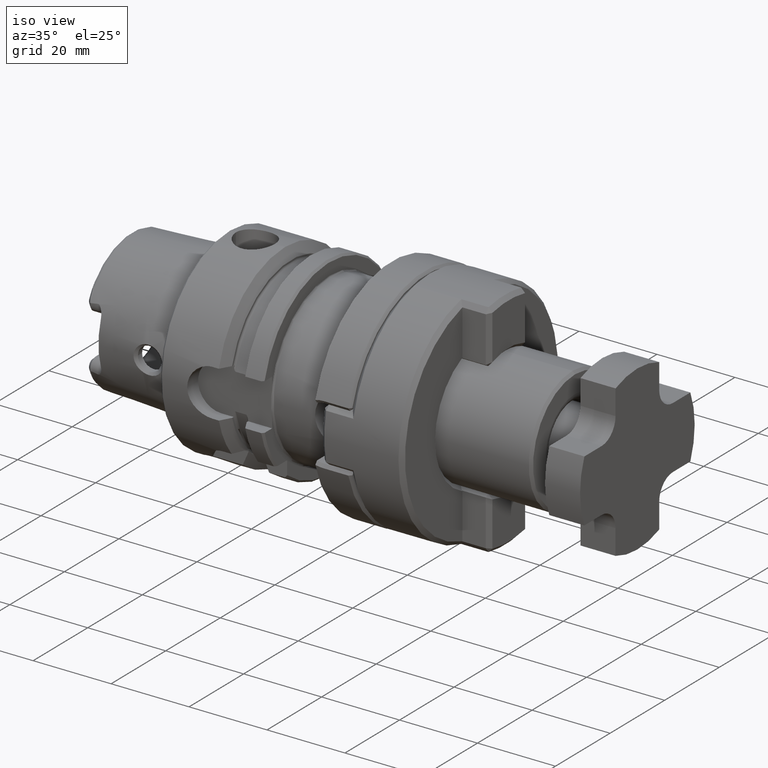
[diagram: clean part render]
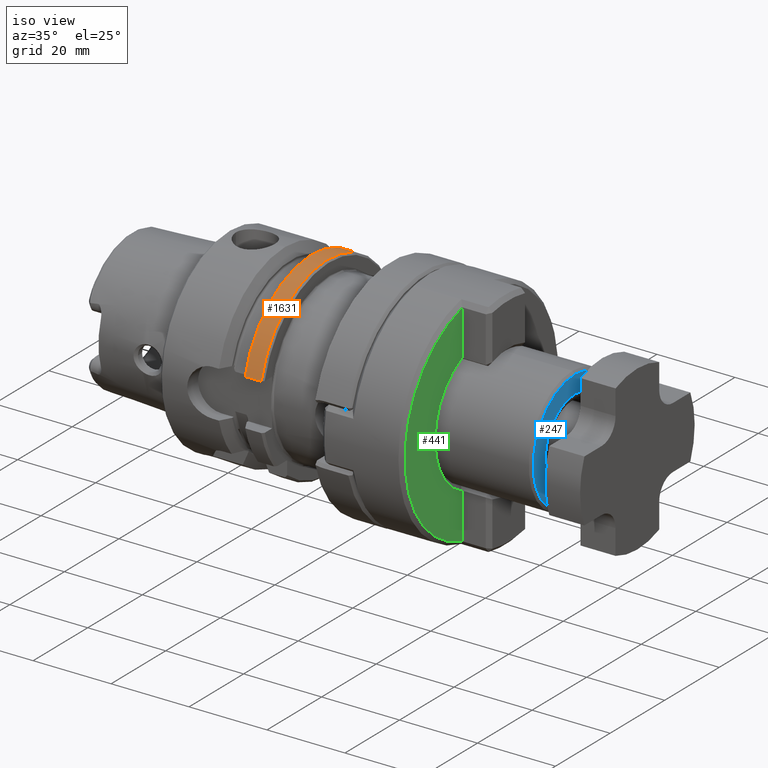
[diagram: same view with three faces highlighted in distinct colors, each labeled with its STEP entity id]
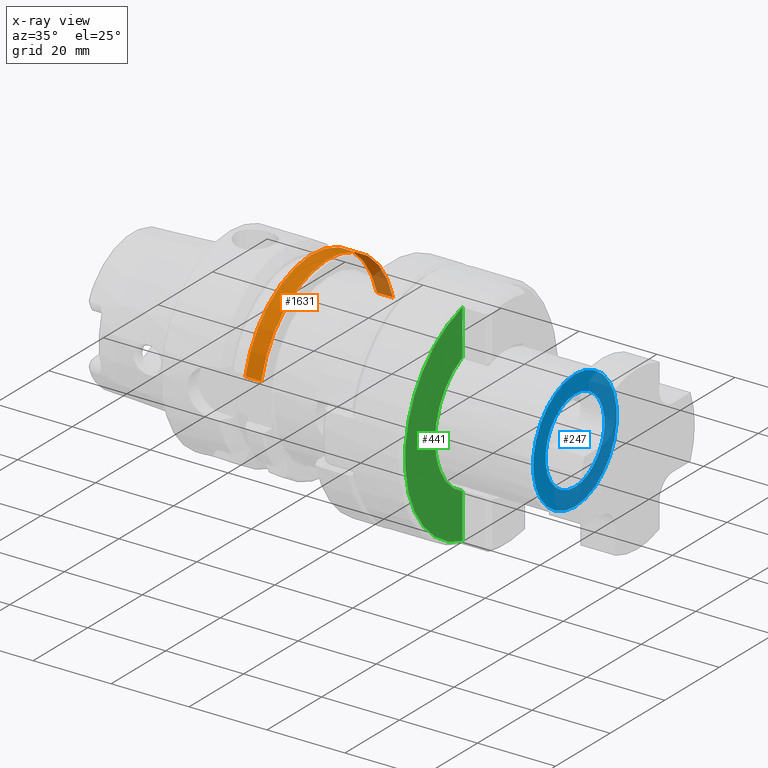
[diagram: x-ray of the same camera — body ghosted, the three highlighted faces saturated]
A machine part, iso view with three faces highlighted in distinct colors.
The next image is the same camera in x-ray (body ghosted, the three faces saturated) — at least one of them is partly hidden behind the body in this view.
Their STEP definitions:

[orange] entity #1631 — the highlighted cylindrical surface (partial cylindrical patch) has radius 25 mm, axis along (1, -0, -0).
#1631 = ADVANCED_FACE( '', ( #3158 ), #3159, .T. );
#3158 = FACE_OUTER_BOUND( '', #3982, .T. );
#3159 = CYLINDRICAL_SURFACE( '', #3983, 25.0000000000000 );
#3982 = EDGE_LOOP( '', ( #5382, #5383, #5384, #5385 ) );
#3983 = AXIS2_PLACEMENT_3D( '', #5386, #5387, #5388 );
#5382 = ORIENTED_EDGE( '', *, *, #7502, .T. );
#5383 = ORIENTED_EDGE( '', *, *, #7599, .T. );
#5384 = ORIENTED_EDGE( '', *, *, #7543, .F. );
#5385 = ORIENTED_EDGE( '', *, *, #7600, .F. );
#5386 = CARTESIAN_POINT( '', ( -60.0000000000000, 0.000000000000000, 0.000000000000000 ) );
#5387 = DIRECTION( '', ( 1.00000000000000, -0.000000000000000, -0.000000000000000 ) );
#5388 = DIRECTION( '', ( 0.000000000000000, 0.000000000000000, 1.00000000000000 ) );
#7502 = EDGE_CURVE( '', #8331, #8329, #8332, .F. );
#7543 = EDGE_CURVE( '', #8404, #8405, #8406, .F. );
#7599 = EDGE_CURVE( '', #8329, #8405, #8497, .T. );
#7600 = EDGE_CURVE( '', #8331, #8404, #8498, .T. );
#8329 = VERTEX_POINT( '', #9341 );
#8331 = VERTEX_POINT( '', #9346 );
#8332 = LINE( '', #9347, #9348 );
#8404 = VERTEX_POINT( '', #9559 );
#8405 = VERTEX_POINT( '', #9560 );
#8406 = LINE( '', #9561, #9562 );
#8497 = CIRCLE( '', #9879, 25.0000000000000 );
#8498 = CIRCLE( '', #9880, 25.0000000000000 );
#9341 = CARTESIAN_POINT( '', ( 25.5000000000000, -24.2693221990232, 6.00000000000000 ) );
#9346 = CARTESIAN_POINT( '', ( 21.3774990747593, -24.2693221990232, 6.00000000000000 ) );
#9347 = CARTESIAN_POINT( '', ( -60.0000000000000, -24.2693221990232, 6.00000000000000 ) );
#9348 = VECTOR( '', #10409, 1000.00000000000 );
#9559 = CARTESIAN_POINT( '', ( 21.3774990747593, 24.0000000000000, 7.00000000000000 ) );
#9560 = CARTESIAN_POINT( '', ( 25.5000000000000, 24.0000000000000, 7.00000000000000 ) );
#9561 = CARTESIAN_POINT( '', ( -60.0000000000000, 24.0000000000000, 7.00000000000000 ) );
#9562 = VECTOR( '', #10442, 1000.00000000000 );
#9879 = AXIS2_PLACEMENT_3D( '', #10522, #10523, #10524 );
#9880 = AXIS2_PLACEMENT_3D( '', #10525, #10526, #10527 );
#10409 = DIRECTION( '', ( -1.00000000000000, 0.000000000000000, 0.000000000000000 ) );
#10442 = DIRECTION( '', ( -1.00000000000000, 0.000000000000000, 0.000000000000000 ) );
#10522 = CARTESIAN_POINT( '', ( 25.5000000000000, 0.000000000000000, 0.000000000000000 ) );
#10523 = DIRECTION( '', ( -1.00000000000000, 0.000000000000000, 0.000000000000000 ) );
#10524 = DIRECTION( '', ( 0.000000000000000, 0.000000000000000, 1.00000000000000 ) );
#10525 = CARTESIAN_POINT( '', ( 21.3774990747593, 0.000000000000000, 0.000000000000000 ) );
#10526 = DIRECTION( '', ( -1.00000000000000, 0.000000000000000, 0.000000000000000 ) );
#10527 = DIRECTION( '', ( 0.000000000000000, 0.000000000000000, 1.00000000000000 ) );

[blue] entity #247 — the highlighted planar face has unit normal (1, 0, 0).
#247 = ADVANCED_FACE( '', ( #602, #603 ), #604, .T. );
#602 = FACE_OUTER_BOUND( '', #1075, .T. );
#603 = FACE_BOUND( '', #1076, .T. );
#604 = PLANE( '', #1077 );
#1075 = EDGE_LOOP( '', ( #2040 ) );
#1076 = EDGE_LOOP( '', ( #2041 ) );
#1077 = AXIS2_PLACEMENT_3D( '', #2042, #2043, #2044 );
#2040 = ORIENTED_EDGE( '', *, *, #3513, .T. );
#2041 = ORIENTED_EDGE( '', *, *, #3514, .T. );
#2042 = CARTESIAN_POINT( '', ( 89.0000000000000, 0.000000000000000, 16.1500000000000 ) );
#2043 = DIRECTION( '', ( 1.00000000000000, 0.000000000000000, 0.000000000000000 ) );
#2044 = DIRECTION( '', ( 0.000000000000000, 0.000000000000000, -1.00000000000000 ) );
#3513 = EDGE_CURVE( '', #4474, #4474, #4475, .T. );
#3514 = EDGE_CURVE( '', #4476, #4476, #4477, .F. );
#4474 = VERTEX_POINT( '', #6530 );
#4475 = CIRCLE( '', #6531, 15.3500000000000 );
#4476 = VERTEX_POINT( '', #6532 );
#4477 = CIRCLE( '', #6533, 10.8000000000000 );
#6530 = CARTESIAN_POINT( '', ( 89.0000000000000, 0.000000000000000, -15.3500000000000 ) );
#6531 = AXIS2_PLACEMENT_3D( '', #7902, #7903, #7904 );
#6532 = CARTESIAN_POINT( '', ( 89.0000000000000, 0.000000000000000, -10.8000000000000 ) );
#6533 = AXIS2_PLACEMENT_3D( '', #7905, #7906, #7907 );
#7902 = CARTESIAN_POINT( '', ( 89.0000000000000, 0.000000000000000, 1.92592994438724E-031 ) );
#7903 = DIRECTION( '', ( 1.00000000000000, 0.000000000000000, 0.000000000000000 ) );
#7904 = DIRECTION( '', ( 0.000000000000000, 0.000000000000000, -1.00000000000000 ) );
#7905 = CARTESIAN_POINT( '', ( 89.0000000000000, 0.000000000000000, 0.000000000000000 ) );
#7906 = DIRECTION( '', ( 1.00000000000000, 0.000000000000000, 0.000000000000000 ) );
#7907 = DIRECTION( '', ( 0.000000000000000, 0.000000000000000, -1.00000000000000 ) );

[green] entity #441 — the highlighted planar face has unit normal (-1, 0, 0).
#441 = ADVANCED_FACE( '', ( #907 ), #908, .F. );
#907 = FACE_OUTER_BOUND( '', #1526, .T. );
#908 = PLANE( '', #1527 );
#1526 = EDGE_LOOP( '', ( #2877, #2878, #2879, #2880 ) );
#1527 = AXIS2_PLACEMENT_3D( '', #2881, #2882, #2883 );
#2877 = ORIENTED_EDGE( '', *, *, #3407, .F. );
#2878 = ORIENTED_EDGE( '', *, *, #3721, .T. );
#2879 = ORIENTED_EDGE( '', *, *, #3820, .F. );
#2880 = ORIENTED_EDGE( '', *, *, #3766, .T. );
#2881 = CARTESIAN_POINT( '', ( 65.0000000000000, 0.000000000000000, 0.000000000000000 ) );
#2882 = DIRECTION( '', ( -1.00000000000000, 0.000000000000000, 0.000000000000000 ) );
#2883 = DIRECTION( '', ( 0.000000000000000, 0.000000000000000, 1.00000000000000 ) );
#3407 = EDGE_CURVE( '', #4299, #4300, #4301, .T. );
#3721 = EDGE_CURVE( '', #4299, #4768, #4770, .T. );
#3766 = EDGE_CURVE( '', #4823, #4300, #4824, .F. );
#3820 = EDGE_CURVE( '', #4823, #4768, #4882, .T. );
#4299 = VERTEX_POINT( '', #6259 );
#4300 = VERTEX_POINT( '', #6260 );
#4301 = LINE( '', #6261, #6262 );
#4768 = VERTEX_POINT( '', #7176 );
#4770 = CIRCLE( '', #7181, 17.0000000000000 );
#4823 = VERTEX_POINT( '', #7283 );
#4824 = CIRCLE( '', #7284, 28.0000000000000 );
#4882 = LINE( '', #7391, #7392 );
#6259 = CARTESIAN_POINT( '', ( 65.0000000000000, -7.00000000000000, -15.4919333848297 ) );
#6260 = CARTESIAN_POINT( '', ( 65.0000000000000, -7.00000000000000, -27.1108834234519 ) );
#6261 = CARTESIAN_POINT( '', ( 65.0000000000000, -7.00000000000000, 29.0000000000000 ) );
#6262 = VECTOR( '', #7781, 1000.00000000000 );
#7176 = CARTESIAN_POINT( '', ( 65.0000000000000, -7.00000000000000, 15.4919333848297 ) );
#7181 = AXIS2_PLACEMENT_3D( '', #8091, #8092, #8093 );
#7283 = CARTESIAN_POINT( '', ( 65.0000000000000, -7.00000000000000, 27.1108834234519 ) );
#7284 = AXIS2_PLACEMENT_3D( '', #8130, #8131, #8132 );
#7391 = CARTESIAN_POINT( '', ( 65.0000000000000, -7.00000000000000, 29.0000000000000 ) );
#7392 = VECTOR( '', #8158, 1000.00000000000 );
#7781 = DIRECTION( '', ( 0.000000000000000, 1.19636101791504E-016, -1.00000000000000 ) );
#8091 = CARTESIAN_POINT( '', ( 65.0000000000000, 0.000000000000000, 0.000000000000000 ) );
#8092 = DIRECTION( '', ( -1.00000000000000, 0.000000000000000, 0.000000000000000 ) );
#8093 = DIRECTION( '', ( 0.000000000000000, 0.000000000000000, 1.00000000000000 ) );
#8130 = CARTESIAN_POINT( '', ( 65.0000000000000, 0.000000000000000, 0.000000000000000 ) );
#8131 = DIRECTION( '', ( -1.00000000000000, 0.000000000000000, 0.000000000000000 ) );
#8132 = DIRECTION( '', ( 0.000000000000000, 0.000000000000000, 1.00000000000000 ) );
#8158 = DIRECTION( '', ( 0.000000000000000, 1.19636101791504E-016, -1.00000000000000 ) );